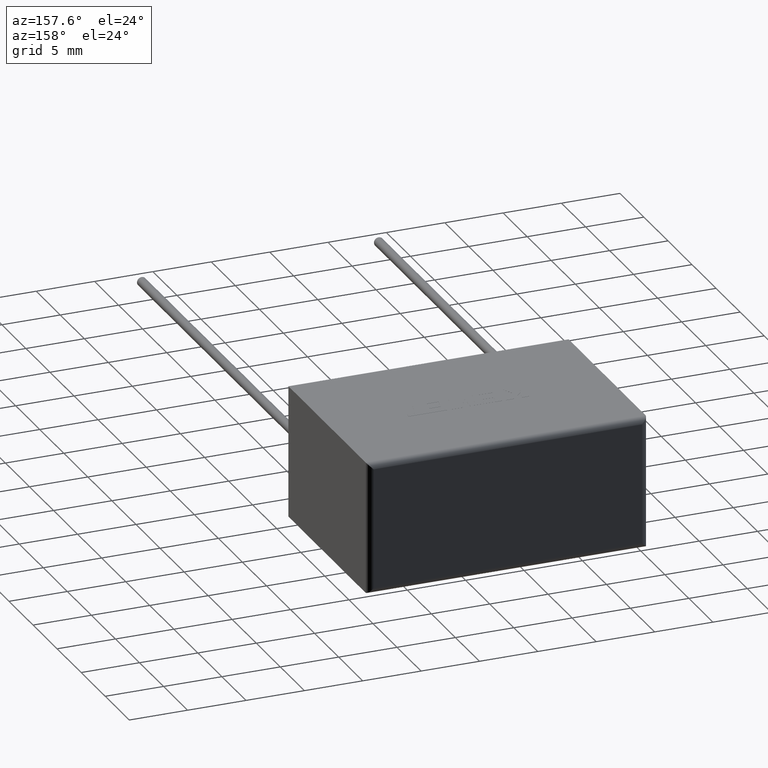
[diagram: clean part render]
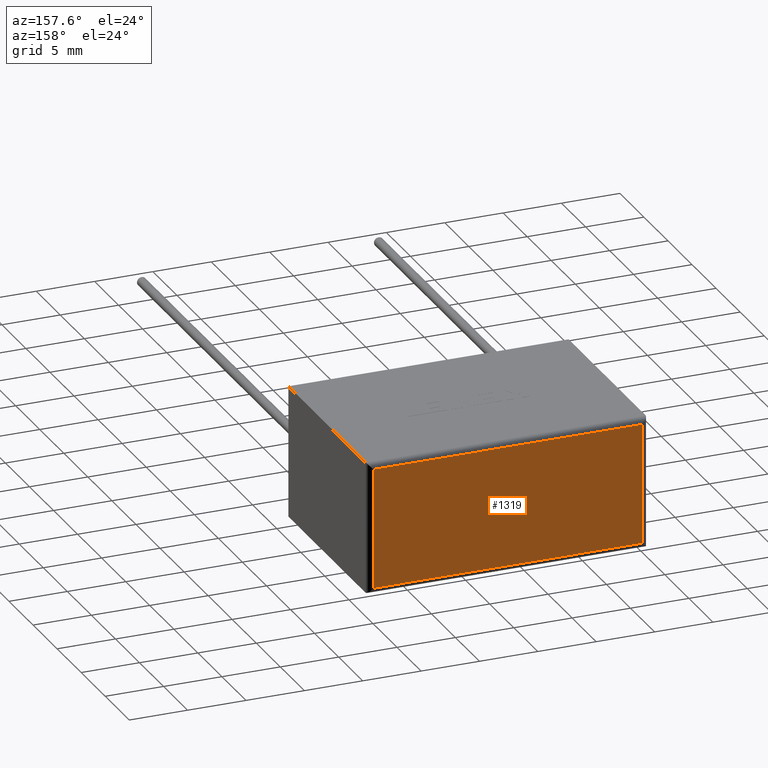
[diagram: same view with one face highlighted and labeled with its STEP entity id]
A machine part, auxiliary view. The second image highlights one B-rep face of the part: STEP entity #1319.
In plain terms, the highlighted planar face has unit normal (0, -1, 0).
Its self-contained STEP definition (entity closure, byte-faithful):
#6 = FACE_OUTER_BOUND ( 'NONE', #788, .T. ) ;
#25 = VERTEX_POINT ( 'NONE', #2357 ) ;
#298 = VERTEX_POINT ( 'NONE', #522 ) ;
#332 = DIRECTION ( 'NONE',  ( 0.0000000000000000000, -0.0000000000000000000, -1.000000000000000000 ) ) ;
#357 = DIRECTION ( 'NONE',  ( -1.000000000000000000, 0.0000000000000000000, 0.0000000000000000000 ) ) ;
#419 = EDGE_CURVE ( 'NONE', #25, #1470, #1229, .T. ) ;
#522 = CARTESIAN_POINT ( 'NONE',  ( 23.50000000000000000, 16.50000000000000000, 10.80000000000000100 ) ) ;
#606 = VERTEX_POINT ( 'NONE', #2308 ) ;
#667 = AXIS2_PLACEMENT_3D ( 'NONE', #703, #2235, #332 ) ;
#703 = CARTESIAN_POINT ( 'NONE',  ( 0.0000000000000000000, 16.50000000000000000, 11.30000000000000100 ) ) ;
#772 = CARTESIAN_POINT ( 'NONE',  ( 0.5000000000000000000, 16.50000000000000000, 0.5000000000000004400 ) ) ;
#788 = EDGE_LOOP ( 'NONE', ( #1176, #1684, #943, #885 ) ) ;
#854 = CARTESIAN_POINT ( 'NONE',  ( 0.0000000000000000000, 16.50000000000000000, 10.80000000000000100 ) ) ;
#885 = ORIENTED_EDGE ( 'NONE', *, *, #2447, .T. ) ;
#943 = ORIENTED_EDGE ( 'NONE', *, *, #419, .T. ) ;
#962 = CARTESIAN_POINT ( 'NONE',  ( 23.50000000000000000, 16.50000000000000000, 11.30000000000000100 ) ) ;
#1036 = LINE ( 'NONE', #854, #2070 ) ;
#1051 = DIRECTION ( 'NONE',  ( 1.000000000000000000, -0.0000000000000000000, -0.0000000000000000000 ) ) ;
#1158 = DIRECTION ( 'NONE',  ( 0.0000000000000000000, 0.0000000000000000000, -1.000000000000000000 ) ) ;
#1176 = ORIENTED_EDGE ( 'NONE', *, *, #2281, .T. ) ;
#1192 = EDGE_CURVE ( 'NONE', #298, #25, #1599, .T. ) ;
#1228 = PLANE ( 'NONE',  #667 ) ;
#1229 = LINE ( 'NONE', #1312, #2168 ) ;
#1312 = CARTESIAN_POINT ( 'NONE',  ( 0.0000000000000000000, 16.50000000000000000, 0.5000000000000004400 ) ) ;
#1319 = ADVANCED_FACE ( 'NONE', ( #6 ), #1228, .F. ) ;
#1470 = VERTEX_POINT ( 'NONE', #772 ) ;
#1599 = LINE ( 'NONE', #962, #1901 ) ;
#1684 = ORIENTED_EDGE ( 'NONE', *, *, #1192, .T. ) ;
#1717 = CARTESIAN_POINT ( 'NONE',  ( 0.5000000000000000000, 16.50000000000000000, 11.30000000000000100 ) ) ;
#1901 = VECTOR ( 'NONE', #1158, 1000.000000000000000 ) ;
#2044 = VECTOR ( 'NONE', #2278, 1000.000000000000000 ) ;
#2070 = VECTOR ( 'NONE', #1051, 1000.000000000000000 ) ;
#2151 = LINE ( 'NONE', #1717, #2044 ) ;
#2168 = VECTOR ( 'NONE', #357, 1000.000000000000000 ) ;
#2235 = DIRECTION ( 'NONE',  ( 0.0000000000000000000, -1.000000000000000000, 0.0000000000000000000 ) ) ;
#2278 = DIRECTION ( 'NONE',  ( -0.0000000000000000000, -0.0000000000000000000, 1.000000000000000000 ) ) ;
#2281 = EDGE_CURVE ( 'NONE', #606, #298, #1036, .T. ) ;
#2308 = CARTESIAN_POINT ( 'NONE',  ( 0.5000000000000000000, 16.50000000000000000, 10.80000000000000100 ) ) ;
#2357 = CARTESIAN_POINT ( 'NONE',  ( 23.50000000000000000, 16.50000000000000000, 0.5000000000000004400 ) ) ;
#2447 = EDGE_CURVE ( 'NONE', #1470, #606, #2151, .T. ) ;